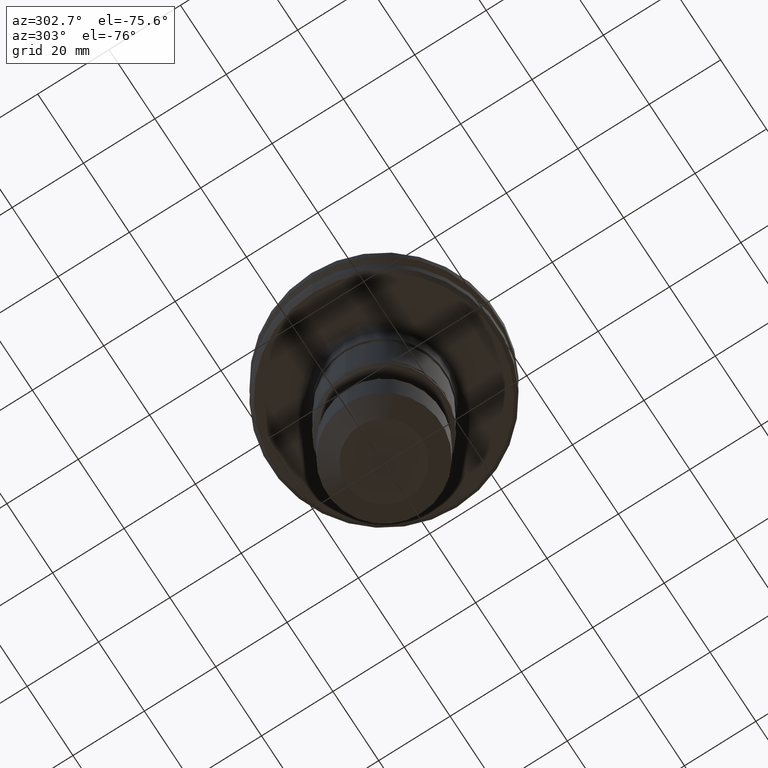
[diagram: clean part render]
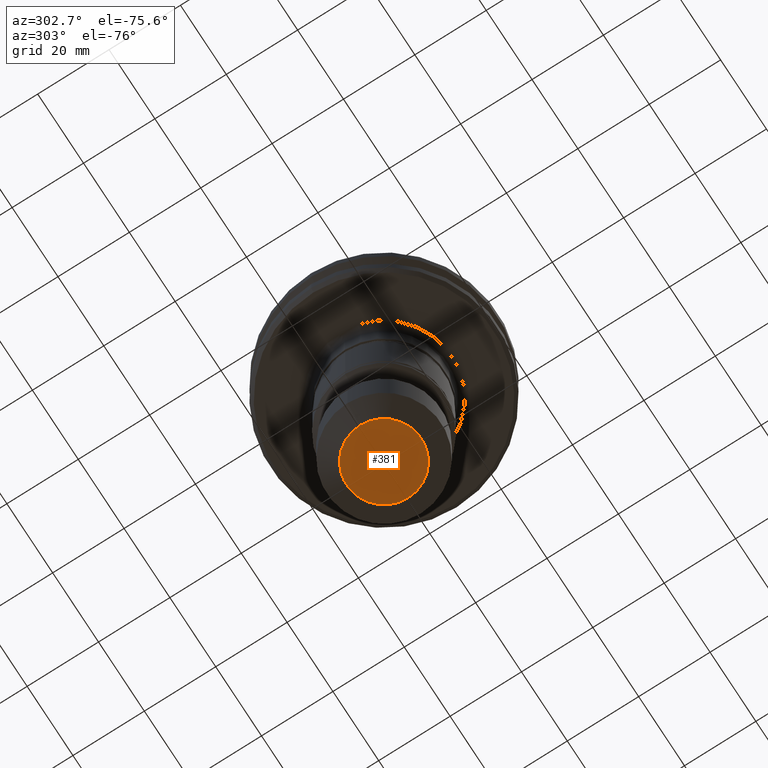
[diagram: same view with one face highlighted and labeled with its STEP entity id]
A machine part, auxiliary view. The second image highlights one B-rep face of the part: STEP entity #381.
In plain terms, the highlighted planar face has unit normal (0, 0, -1).
Its self-contained STEP definition (entity closure, byte-faithful):
#65 = CIRCLE ( 'NONE', #375, 10.50000000000000200 ) ;
#86 = AXIS2_PLACEMENT_3D ( 'NONE', #1941, #1093, #587 ) ;
#155 = AXIS2_PLACEMENT_3D ( 'NONE', #1207, #1206, #1204 ) ;
#220 = ORIENTED_EDGE ( 'NONE', *, *, #1946, .F. ) ;
#375 = AXIS2_PLACEMENT_3D ( 'NONE', #854, #1064, #807 ) ;
#381 = ADVANCED_FACE ( 'NONE', ( #900 ), #1216, .T. ) ;
#587 = DIRECTION ( 'NONE',  ( 1.000000000000000000, 0.0000000000000000000, 0.0000000000000000000 ) ) ;
#807 = DIRECTION ( 'NONE',  ( 1.000000000000000000, 0.0000000000000000000, 0.0000000000000000000 ) ) ;
#854 = CARTESIAN_POINT ( 'NONE',  ( 0.0000000000000000000, 0.0000000000000000000, -79.00000000000000000 ) ) ;
#900 = FACE_OUTER_BOUND ( 'NONE', #950, .T. ) ;
#950 = EDGE_LOOP ( 'NONE', ( #1831, #220 ) ) ;
#1064 = DIRECTION ( 'NONE',  ( 0.0000000000000000000, -0.0000000000000000000, 1.000000000000000000 ) ) ;
#1093 = DIRECTION ( 'NONE',  ( 0.0000000000000000000, -0.0000000000000000000, 1.000000000000000000 ) ) ;
#1204 = DIRECTION ( 'NONE',  ( -1.000000000000000000, 0.0000000000000000000, -0.0000000000000000000 ) ) ;
#1206 = DIRECTION ( 'NONE',  ( 0.0000000000000000000, 0.0000000000000000000, -1.000000000000000000 ) ) ;
#1207 = CARTESIAN_POINT ( 'NONE',  ( 0.0000000000000000000, -10.50000000000000000, -79.00000000000000000 ) ) ;
#1216 = PLANE ( 'NONE',  #155 ) ;
#1484 = CIRCLE ( 'NONE', #86, 10.50000000000000200 ) ;
#1588 = EDGE_CURVE ( 'NONE', #1930, #1702, #65, .T. ) ;
#1702 = VERTEX_POINT ( 'NONE', #1933 ) ;
#1831 = ORIENTED_EDGE ( 'NONE', *, *, #1588, .F. ) ;
#1930 = VERTEX_POINT ( 'NONE', #2091 ) ;
#1933 = CARTESIAN_POINT ( 'NONE',  ( -10.50000000000000200, 1.622657008870243100E-015, -79.00000000000000000 ) ) ;
#1941 = CARTESIAN_POINT ( 'NONE',  ( 0.0000000000000000000, 0.0000000000000000000, -79.00000000000000000 ) ) ;
#1946 = EDGE_CURVE ( 'NONE', #1702, #1930, #1484, .T. ) ;
#2091 = CARTESIAN_POINT ( 'NONE',  ( 10.50000000000000200, 0.0000000000000000000, -79.00000000000000000 ) ) ;